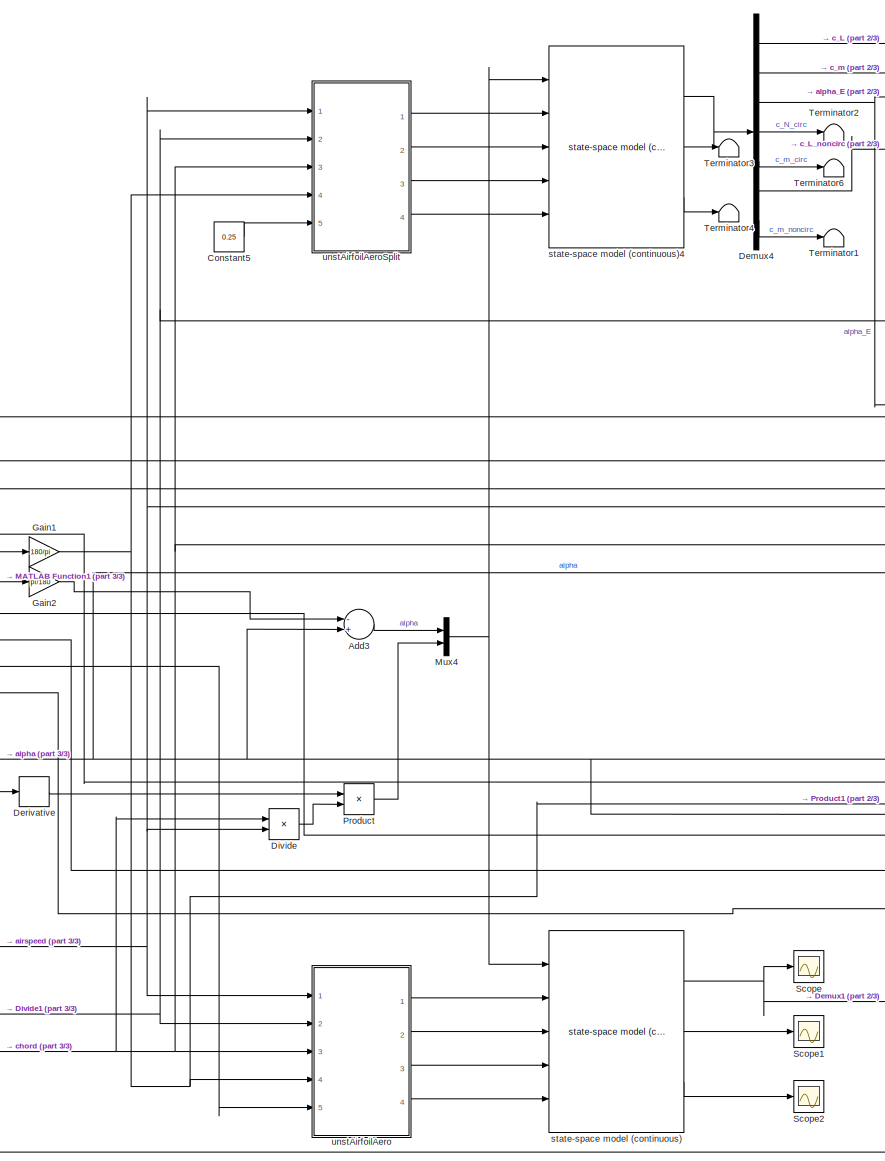
[diagram: root canvas - part 1/3, center side, full height]
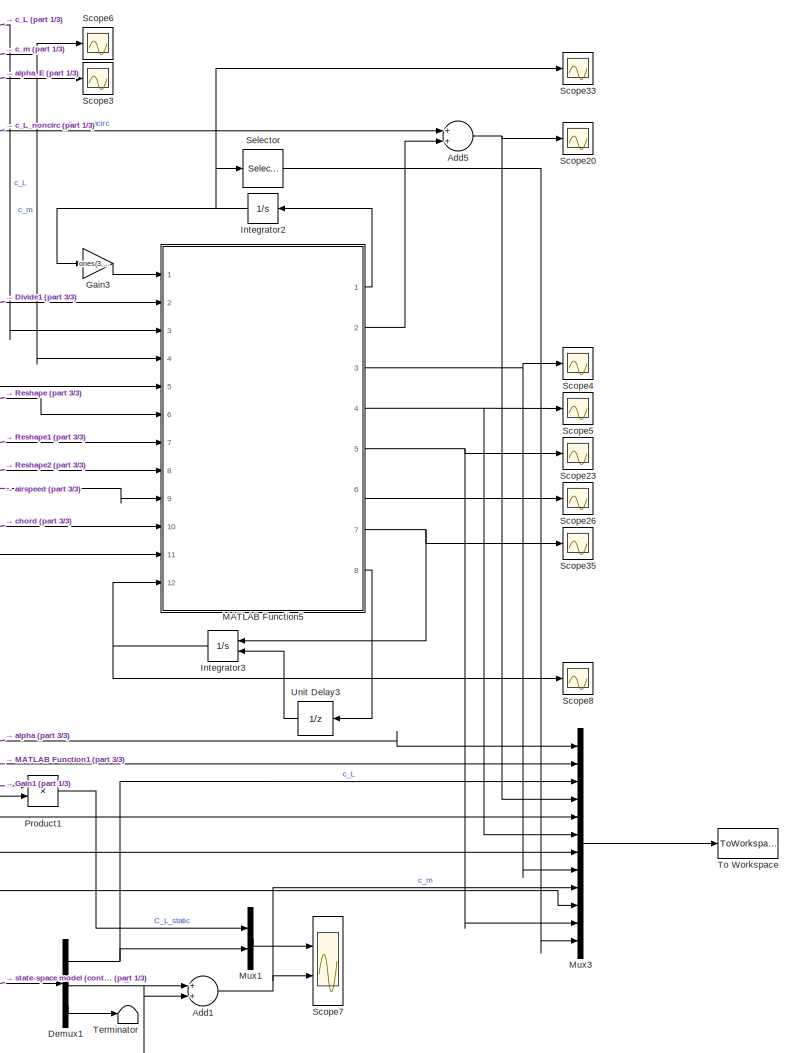
[diagram: root canvas - part 2/3, right side, full height]
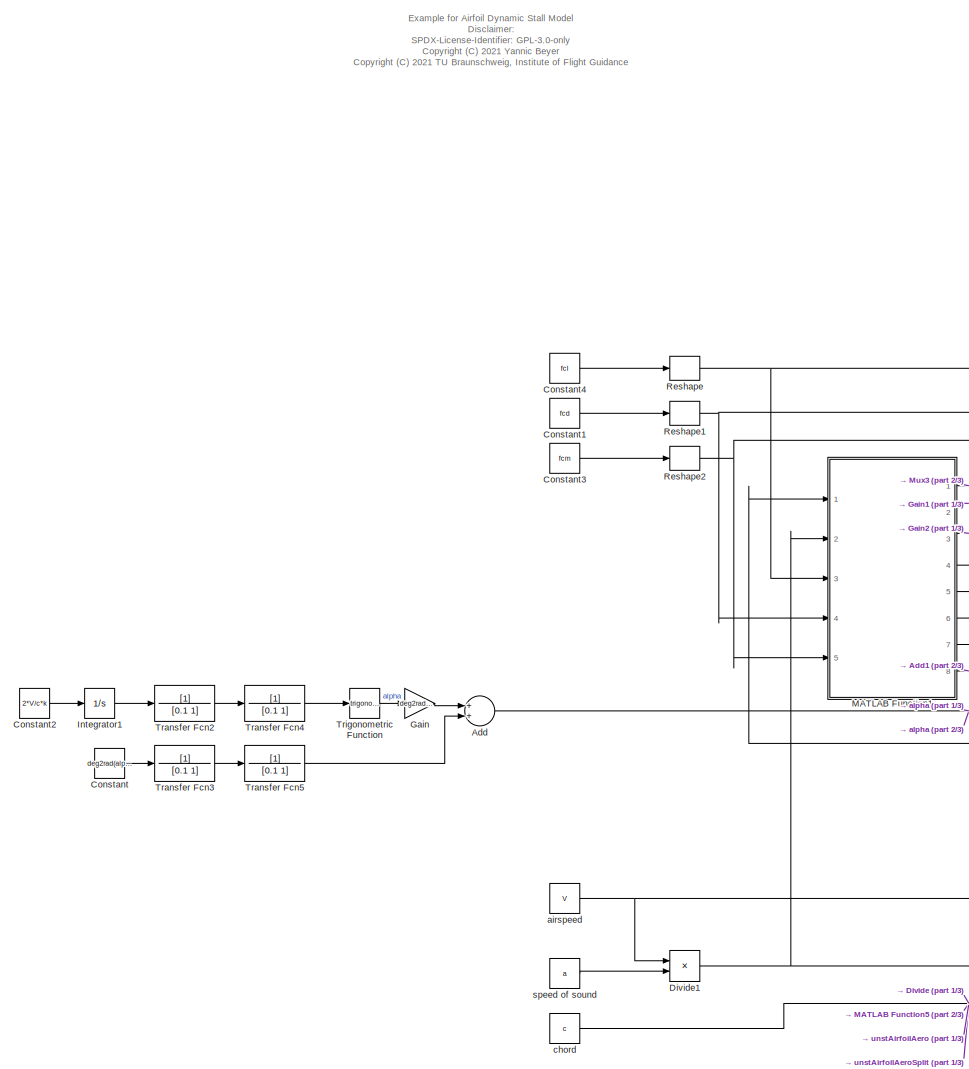
[diagram: root canvas - part 3/3, left side, full height]
MODEL slx_f04c9dd9e634
KIND model
CONFIG AbsTol = auto
CONFIG EnableMultiTasking = off
CONFIG FixedStep = 0.002
CONFIG MaxStep = auto
CONFIG MinStep = auto
CONFIG RelTol = 1e-3
CONFIG SampleTimeConstraint = Unconstrained
CONFIG Solver = FixedStepAuto
CONFIG SolverName = FixedStepAuto
CONFIG StartTime = 0.0
CONFIG StopTime = t_sim
BLOCK [Sum] Add
  InputSameDT = off
  OutDataTypeStr = Inherit: Inherit via internal rule
  Ports = [2, 1]
  SaturateOnIntegerOverflow = off
BLOCK [Sum] Add1
  InputSameDT = off
  OutDataTypeStr = Inherit: Inherit via internal rule
  Ports = [2, 1]
  SaturateOnIntegerOverflow = off
BLOCK [Sum] Add3
  InputSameDT = off
  Inputs = -+
  OutDataTypeStr = Inherit: Inherit via internal rule
  Ports = [2, 1]
  SaturateOnIntegerOverflow = off
BLOCK [Sum] Add5
  InputSameDT = off
  OutDataTypeStr = Inherit: Inherit via internal rule
  Ports = [2, 1]
  SaturateOnIntegerOverflow = off
BLOCK [Constant] Constant
  Value = deg2rad(alpha_0)
BLOCK [Constant] Constant1
  Value = fcd
BLOCK [Constant] Constant2
  Value = 2*V/c*k
BLOCK [Constant] Constant3
  Value = fcm
BLOCK [Constant] Constant4
  Value = fcl
BLOCK [Constant] Constant5
  Value = 0.25
BLOCK [Demux] Demux1
  DisplayOption = bar
  Outputs = 3
  Ports = [1, 3]
BLOCK [Demux] Demux4
  DisplayOption = bar
  Outputs = 7
  Ports = [1, 7]
BLOCK [Derivative] Derivative
BLOCK [Product] Divide
  InputSameDT = off
  Inputs = */
  OutDataTypeStr = Inherit: Inherit via internal rule
  Ports = [2, 1]
  RndMeth = Floor
  SaturateOnIntegerOverflow = off
BLOCK [Product] Divide1
  InputSameDT = off
  Inputs = */
  OutDataTypeStr = Inherit: Inherit via internal rule
  Ports = [2, 1]
  RndMeth = Floor
  SaturateOnIntegerOverflow = off
BLOCK [Gain] Gain
  Gain = deg2rad(Delta_alpha)
  OutDataTypeStr = Inherit: Inherit via internal rule
  ParamDataTypeStr = Inherit: Inherit via internal rule
  SaturateOnIntegerOverflow = off
BLOCK [Gain] Gain1
  Gain = 180/pi
  OutDataTypeStr = Inherit: Inherit via internal rule
  ParamDataTypeStr = Inherit: Inherit via internal rule
  SaturateOnIntegerOverflow = off
BLOCK [Gain] Gain2
  Gain = pi/180
  OutDataTypeStr = Inherit: Inherit via internal rule
  ParamDataTypeStr = Inherit: Inherit via internal rule
  SaturateOnIntegerOverflow = off
BLOCK [Gain] Gain3
  Gain = ones(3,1)
  OutDataTypeStr = Inherit: Inherit via internal rule
  ParamDataTypeStr = Inherit: Inherit via internal rule
  SaturateOnIntegerOverflow = off
BLOCK [Integrator] Integrator1
  Ports = [1, 1]
BLOCK [Integrator] Integrator2
  Ports = [1, 1]
BLOCK [Integrator] Integrator3
  ExternalReset = falling
  Ports = [2, 1]
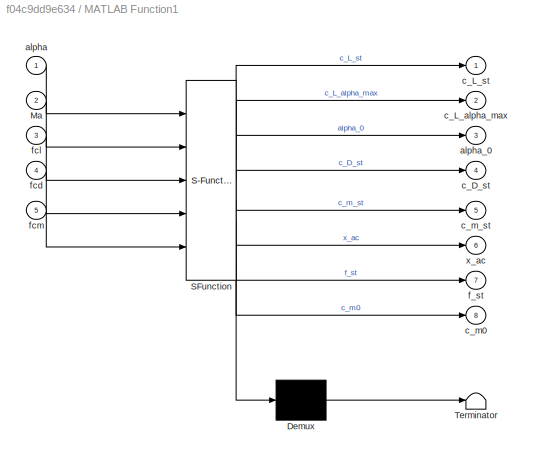
BLOCK [SubSystem] MATLAB Function1
  ErrorFcn = Stateflow.Translate.translate
  PermitHierarchicalResolution = ExplicitOnly
  Ports = [5, 8]
  RequestExecContextInheritance = off
  SFBlockType = MATLAB Function
  TreatAsAtomicUnit = on
BLOCK [Demux] MATLAB Function1/ Demux 
  Outputs = 1
  Ports = [1, 1]
BLOCK [S-Function] MATLAB Function1/ SFunction 
  EnableBusSupport = on
  FunctionName = sf_sfun
  PortCounts = [5 9]
  Ports = [5, 9]
  SFcnIsStateOwnerBlock = off
  SFunctionDeploymentMode = off
  Tag = Stateflow S-Function example_sim_airfoilDynStall 4
BLOCK [Terminator] MATLAB Function1/ Terminator 
BLOCK [Inport] MATLAB Function1/Ma
  IconDisplay = Port number
  Port = 2
BLOCK [Inport] MATLAB Function1/alpha
  IconDisplay = Port number
BLOCK [Outport] MATLAB Function1/alpha_0
  IconDisplay = Port number
  Port = 3
BLOCK [Outport] MATLAB Function1/c_D_st
  IconDisplay = Port number
  Port = 4
BLOCK [Outport] MATLAB Function1/c_L_alpha_max
  IconDisplay = Port number
  Port = 2
BLOCK [Outport] MATLAB Function1/c_L_st
  IconDisplay = Port number
BLOCK [Outport] MATLAB Function1/c_m0
  IconDisplay = Port number
  Port = 8
BLOCK [Outport] MATLAB Function1/c_m_st
  IconDisplay = Port number
  Port = 5
BLOCK [Outport] MATLAB Function1/f_st
  IconDisplay = Port number
  Port = 7
BLOCK [Inport] MATLAB Function1/fcd
  IconDisplay = Port number
  Port = 4
BLOCK [Inport] MATLAB Function1/fcl
  IconDisplay = Port number
  Port = 3
BLOCK [Inport] MATLAB Function1/fcm
  IconDisplay = Port number
  Port = 5
BLOCK [Outport] MATLAB Function1/x_ac
  IconDisplay = Port number
  Port = 6
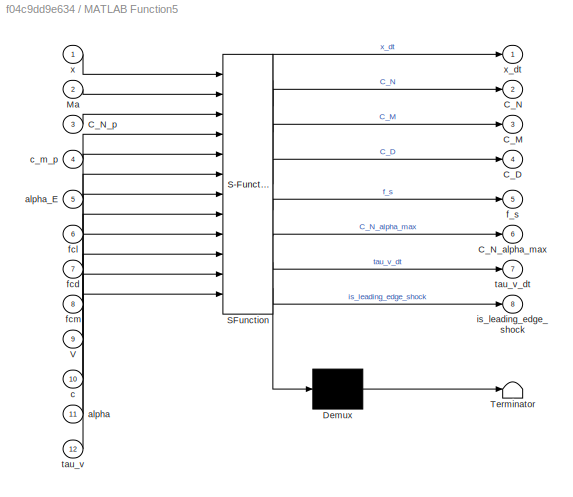
BLOCK [SubSystem] MATLAB Function5
  ErrorFcn = Stateflow.Translate.translate
  PermitHierarchicalResolution = ExplicitOnly
  Ports = [12, 8]
  RequestExecContextInheritance = off
  SFBlockType = MATLAB Function
  TreatAsAtomicUnit = on
BLOCK [Demux] MATLAB Function5/ Demux 
  Outputs = 1
  Ports = [1, 1]
BLOCK [S-Function] MATLAB Function5/ SFunction 
  EnableBusSupport = on
  FunctionName = sf_sfun
  PortCounts = [12 9]
  Ports = [12, 9]
  SFcnIsStateOwnerBlock = off
  SFunctionDeploymentMode = off
  Tag = Stateflow S-Function example_sim_airfoilDynStall 10
BLOCK [Terminator] MATLAB Function5/ Terminator 
BLOCK [Outport] MATLAB Function5/C_D
  IconDisplay = Port number
  Port = 4
BLOCK [Outport] MATLAB Function5/C_M
  IconDisplay = Port number
  Port = 3
BLOCK [Outport] MATLAB Function5/C_N
  IconDisplay = Port number
  Port = 2
BLOCK [Outport] MATLAB Function5/C_N_alpha_max
  IconDisplay = Port number
  Port = 6
BLOCK [Inport] MATLAB Function5/C_N_p
  IconDisplay = Port number
  Port = 3
BLOCK [Inport] MATLAB Function5/Ma
  IconDisplay = Port number
  Port = 2
BLOCK [Inport] MATLAB Function5/V
  IconDisplay = Port number
  Port = 9
BLOCK [Inport] MATLAB Function5/alpha
  IconDisplay = Port number
  Port = 11
BLOCK [Inport] MATLAB Function5/alpha_E
  IconDisplay = Port number
  Port = 5
BLOCK [Inport] MATLAB Function5/c
  IconDisplay = Port number
  Port = 10
BLOCK [Inport] MATLAB Function5/c_m_p
  IconDisplay = Port number
  Port = 4
BLOCK [Outport] MATLAB Function5/f_s
  IconDisplay = Port number
  Port = 5
BLOCK [Inport] MATLAB Function5/fcd
  IconDisplay = Port number
  Port = 7
BLOCK [Inport] MATLAB Function5/fcl
  IconDisplay = Port number
  Port = 6
BLOCK [Inport] MATLAB Function5/fcm
  IconDisplay = Port number
  Port = 8
BLOCK [Outport] MATLAB Function5/is_leading_edge_shock
  IconDisplay = Port number
  Port = 8
BLOCK [Inport] MATLAB Function5/tau_v
  IconDisplay = Port number
  Port = 12
BLOCK [Outport] MATLAB Function5/tau_v_dt
  IconDisplay = Port number
  Port = 7
BLOCK [Inport] MATLAB Function5/x
  IconDisplay = Port number
BLOCK [Outport] MATLAB Function5/x_dt
  IconDisplay = Port number
BLOCK [Mux] Mux1
  DisplayOption = bar
  Inputs = 2
  Ports = [2, 1]
BLOCK [Mux] Mux3
  DisplayOption = bar
  Inputs = 12
  Ports = [12, 1]
BLOCK [Mux] Mux4
  DisplayOption = bar
  Inputs = 2
  Ports = [2, 1]
BLOCK [Product] Product
  InputSameDT = off
  OutDataTypeStr = Inherit: Inherit via internal rule
  Ports = [2, 1]
  RndMeth = Floor
  SaturateOnIntegerOverflow = off
BLOCK [Product] Product1
  InputSameDT = off
  OutDataTypeStr = Inherit: Inherit via internal rule
  Ports = [2, 1]
  RndMeth = Floor
  SaturateOnIntegerOverflow = off
BLOCK [Reshape] Reshape
  OutputDimensionality = Row vector (2-D)
  Ports = [1, 1]
BLOCK [Reshape] Reshape1
  OutputDimensionality = Row vector (2-D)
  Ports = [1, 1]
BLOCK [Reshape] Reshape2
  OutputDimensionality = Row vector (2-D)
  Ports = [1, 1]
BLOCK [Scope] Scope
  Floating = off
  NumInputPorts = 1
  Ports = [1]
  ScopeSpecificationString = Simulink.scopes.TimeScopeBlockCfg('CurrentConfiguration', extmgr.ConfigurationSet(extmgr.Configuration('Core','General UI',true),extmgr.Configuration('Core','Source UI',true),extmgr.Configuration('Sources','WiredSimulink',true),extmgr.Configuration('Visuals','Time Domain',true,'SerializedDisplays',{struct('MinYLimReal','-0.10163','MaxYLimReal','0.81742','YLabelReal','','MinYLimMag','0.00000','MaxY...<+1536ch>
BLOCK [Scope] Scope1
  Floating = off
  NumInputPorts = 1
  Ports = [1]
  ScopeSpecificationString = Simulink.scopes.TimeScopeBlockCfg('CurrentConfiguration', extmgr.ConfigurationSet(extmgr.Configuration('Core','General UI',true),extmgr.Configuration('Core','Source UI',true),extmgr.Configuration('Sources','WiredSimulink',true,'DataLoggingVariableName','ScopeData1'),extmgr.Configuration('Visuals','Time Domain',true,'SerializedDisplays',{struct('MinYLimReal','-0.0125','MaxYLimReal','0.1125','YLabel...<+1703ch>
BLOCK [Scope] Scope2
  Floating = off
  NumInputPorts = 1
  Ports = [1]
  ScopeSpecificationString = Simulink.scopes.TimeScopeBlockCfg('CurrentConfiguration', extmgr.ConfigurationSet(extmgr.Configuration('Core','General UI',true),extmgr.Configuration('Core','Source UI',true),extmgr.Configuration('Sources','WiredSimulink',true,'DataLoggingVariableName','ScopeData2'),extmgr.Configuration('Visuals','Time Domain',true,'SerializedDisplays',{struct('MinYLimReal','-0.00548','MaxYLimReal','0.04926','YLab...<+1704ch>
BLOCK [Scope] Scope20
  Floating = off
  NumInputPorts = 1
  Ports = [1]
  ScopeSpecificationString = Simulink.scopes.TimeScopeBlockCfg('CurrentConfiguration', extmgr.ConfigurationSet(extmgr.Configuration('Core','General UI',true),extmgr.Configuration('Core','Source UI',true),extmgr.Configuration('Sources','WiredSimulink',true,'DataLoggingVariableName','ScopeData6'),extmgr.Configuration('Visuals','Time Domain',true,'SerializedDisplays',{struct('MinYLimReal','0.01884','MaxYLimReal','1.626','YLabelR...<+1378ch>
BLOCK [Scope] Scope23
  Floating = off
  NumInputPorts = 1
  Ports = [1]
  ScopeSpecificationString = Simulink.scopes.TimeScopeBlockCfg('CurrentConfiguration', extmgr.ConfigurationSet(extmgr.Configuration('Core','General UI',true),extmgr.Configuration('Core','Source UI',true),extmgr.Configuration('Sources','WiredSimulink',true,'DataLoggingVariableName','ScopeData9'),extmgr.Configuration('Visuals','Time Domain',true,'SerializedDisplays',{struct('MinYLimReal','-0.07224','MaxYLimReal','1.11914','YLab...<+1423ch>
BLOCK [Scope] Scope26
  Floating = off
  NumInputPorts = 1
  Ports = [1]
  ScopeSpecificationString = Simulink.scopes.TimeScopeBlockCfg('CurrentConfiguration', extmgr.ConfigurationSet(extmgr.Configuration('Core','General UI',true),extmgr.Configuration('Core','Source UI',true),extmgr.Configuration('Sources','WiredSimulink',true,'DataLoggingVariableName','ScopeData12'),extmgr.Configuration('Visuals','Time Domain',true,'SerializedDisplays',{struct('MinYLimReal','6.22073','MaxYLimReal','8.22073','YLab...<+1413ch>
BLOCK [Scope] Scope3
  Floating = off
  NumInputPorts = 1
  Ports = [1]
  ScopeSpecificationString = Simulink.scopes.TimeScopeBlockCfg('CurrentConfiguration', extmgr.ConfigurationSet(extmgr.Configuration('Core','General UI',true),extmgr.Configuration('Core','Source UI',true),extmgr.Configuration('Sources','WiredSimulink',true,'DataLoggingVariableName','ScopeData1'),extmgr.Configuration('Visuals','Time Domain',true,'SerializedDisplays',{struct('MinYLimReal','-0.02184','MaxYLimReal','0.19659','YLab...<+1366ch>
BLOCK [Scope] Scope33
  Floating = off
  NumInputPorts = 1
  Ports = [1]
  ScopeSpecificationString = Simulink.scopes.TimeScopeBlockCfg('CurrentConfiguration', extmgr.ConfigurationSet(extmgr.Configuration('Core','General UI',true),extmgr.Configuration('Core','Source UI',true),extmgr.Configuration('Sources','WiredSimulink',true,'DataLoggingVariableName','ScopeData3'),extmgr.Configuration('Visuals','Time Domain',true,'SerializedDisplays',{struct('MinYLimReal','-0.08993','MaxYLimReal','0.21213','YLab...<+1489ch>
BLOCK [Scope] Scope35
  Floating = off
  NumInputPorts = 1
  Ports = [1]
  ScopeSpecificationString = Simulink.scopes.TimeScopeBlockCfg('CurrentConfiguration', extmgr.ConfigurationSet(extmgr.Configuration('Core','General UI',true),extmgr.Configuration('Core','Source UI',true),extmgr.Configuration('Sources','WiredSimulink',true,'DataLoggingVariableName','ScopeData1'),extmgr.Configuration('Visuals','Time Domain',true,'SerializedDisplays',{struct('MinYLimReal','-0.125','MaxYLimReal','1.125','YLabelRe...<+1397ch>
BLOCK [Scope] Scope4
  Floating = off
  NumInputPorts = 1
  Ports = [1]
  ScopeSpecificationString = Simulink.scopes.TimeScopeBlockCfg('CurrentConfiguration', extmgr.ConfigurationSet(extmgr.Configuration('Core','General UI',true),extmgr.Configuration('Core','Source UI',true),extmgr.Configuration('Sources','WiredSimulink',true,'DataLoggingVariableName','ScopeData2'),extmgr.Configuration('Visuals','Time Domain',true,'SerializedDisplays',{struct('MinYLimReal','-1.00000','MaxYLimReal','1.00000','YLab...<+1423ch>
BLOCK [Scope] Scope5
  Floating = off
  NumInputPorts = 1
  Ports = [1]
  ScopeSpecificationString = Simulink.scopes.TimeScopeBlockCfg('CurrentConfiguration', extmgr.ConfigurationSet(extmgr.Configuration('Core','General UI',true),extmgr.Configuration('Core','Source UI',true),extmgr.Configuration('Sources','WiredSimulink',true,'DataLoggingVariableName','ScopeData3'),extmgr.Configuration('Visuals','Time Domain',true,'SerializedDisplays',{struct('MinYLimReal','-1.00000','MaxYLimReal','1.00000','YLab...<+1423ch>
BLOCK [Scope] Scope6
  Floating = off
  NumInputPorts = 1
  Ports = [1]
  ScopeSpecificationString = Simulink.scopes.TimeScopeBlockCfg('CurrentConfiguration', extmgr.ConfigurationSet(extmgr.Configuration('Core','General UI',true),extmgr.Configuration('Core','Source UI',true),extmgr.Configuration('Sources','WiredSimulink',true,'DataLoggingVariableName','ScopeData1'),extmgr.Configuration('Visuals','Time Domain',true,'SerializedDisplays',{struct('MinYLimReal','-0.08869','MaxYLimReal','-0.0034','YLab...<+1406ch>
BLOCK [Scope] Scope7
  Floating = off
  NumInputPorts = 2
  Ports = [2]
  ScopeSpecificationString = Simulink.scopes.TimeScopeBlockCfg('CurrentConfiguration', extmgr.ConfigurationSet(extmgr.Configuration('Core','General UI',true),extmgr.Configuration('Core','Source UI',true),extmgr.Configuration('Sources','WiredSimulink',true,'DataLoggingVariableName','ScopeData5'),extmgr.Configuration('Visuals','Time Domain',true,'SerializedDisplays',{struct('MinYLimReal','-0.93594','MaxYLimReal','4.58755','YLab...<+2303ch>
BLOCK [Scope] Scope8
  Floating = off
  NumInputPorts = 1
  Ports = [1]
  ScopeSpecificationString = Simulink.scopes.TimeScopeBlockCfg('CurrentConfiguration', extmgr.ConfigurationSet(extmgr.Configuration('Core','General UI',true),extmgr.Configuration('Core','Source UI',true),extmgr.Configuration('Sources','WiredSimulink',true,'DataLoggingVariableName','ScopeData2'),extmgr.Configuration('Visuals','Time Domain',true,'SerializedDisplays',{struct('MinYLimReal','-0.03683','MaxYLimReal','0.3315','YLabe...<+1391ch>
BLOCK [Selector] Selector
  IndexOptions = Index vector (dialog)
  Indices = 2
  InputPortWidth = 3
  OutputSizes = 1
  Ports = [1, 1]
BLOCK [Terminator] Terminator
BLOCK [Terminator] Terminator1
BLOCK [Terminator] Terminator2
BLOCK [Terminator] Terminator3
BLOCK [Terminator] Terminator4
BLOCK [Terminator] Terminator6
BLOCK [ToWorkspace] To Workspace
  FixptAsFi = on
  MaxDataPoints = inf
  Ports = [1]
  SampleTime = -1
  Save2DSignal = 3-D array (concatenate along third dimension)
  SaveFormat = Timeseries
  VariableName = simout
BLOCK [TransferFcn] Transfer Fcn2
  Denominator = [0.1 1]
BLOCK [TransferFcn] Transfer Fcn3
  Denominator = [0.1 1]
BLOCK [TransferFcn] Transfer Fcn4
  Denominator = [0.1 1]
BLOCK [TransferFcn] Transfer Fcn5
  Denominator = [0.1 1]
BLOCK [Trigonometry] Trigonometric Function
  Ports = [1, 1]
BLOCK [UnitDelay] Unit Delay3
  InputProcessing = Elements as channels (sample based)
  SampleTime = -1
BLOCK [Constant] airspeed
  Value = V
BLOCK [Constant] chord
  Value = c
BLOCK [Constant] speed of sound
  Value = a
BLOCK [Reference] state-space model (continuous)  REF=linear_systems_lib/state-space model   (lib defined in slx_6d7ae23f43cd)
(continuous)
  Ports = [5, 3]
  SourceBlock = linear_systems_lib/state-space model \n(continuous)
  SourceProductName = LADAC
BLOCK [Reference] state-space model (continuous)4  REF=linear_systems_lib/state-space model   (lib defined in slx_6d7ae23f43cd)
(continuous)
  Ports = [5, 3]
  SourceBlock = linear_systems_lib/state-space model \n(continuous)
  SourceProductName = LADAC
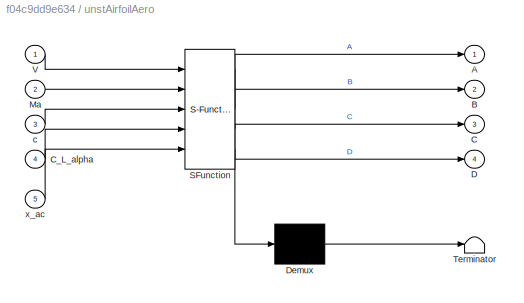
BLOCK [SubSystem] unstAirfoilAero
  ErrorFcn = Stateflow.Translate.translate
  PermitHierarchicalResolution = ExplicitOnly
  Ports = [5, 4]
  RequestExecContextInheritance = off
  SFBlockType = MATLAB Function
  TreatAsAtomicUnit = on
BLOCK [Demux] unstAirfoilAero/ Demux 
  Outputs = 1
  Ports = [1, 1]
BLOCK [S-Function] unstAirfoilAero/ SFunction 
  EnableBusSupport = on
  FunctionName = sf_sfun
  PortCounts = [5 5]
  Ports = [5, 5]
  SFcnIsStateOwnerBlock = off
  SFunctionDeploymentMode = off
  Tag = Stateflow S-Function example_sim_airfoilDynStall 2
BLOCK [Terminator] unstAirfoilAero/ Terminator 
BLOCK [Outport] unstAirfoilAero/A
  IconDisplay = Port number
BLOCK [Outport] unstAirfoilAero/B
  IconDisplay = Port number
  Port = 2
BLOCK [Outport] unstAirfoilAero/C
  IconDisplay = Port number
  Port = 3
BLOCK [Inport] unstAirfoilAero/C_L_alpha
  IconDisplay = Port number
  Port = 4
BLOCK [Outport] unstAirfoilAero/D
  IconDisplay = Port number
  Port = 4
BLOCK [Inport] unstAirfoilAero/Ma
  IconDisplay = Port number
  Port = 2
BLOCK [Inport] unstAirfoilAero/V
  IconDisplay = Port number
BLOCK [Inport] unstAirfoilAero/c
  IconDisplay = Port number
  Port = 3
BLOCK [Inport] unstAirfoilAero/x_ac
  IconDisplay = Port number
  Port = 5
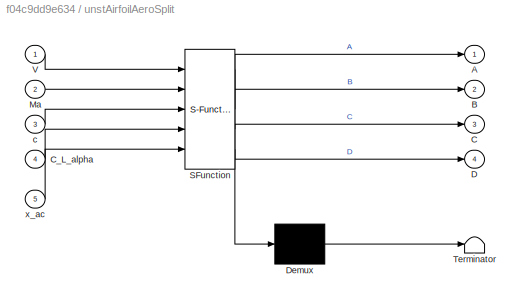
BLOCK [SubSystem] unstAirfoilAeroSplit
  ErrorFcn = Stateflow.Translate.translate
  PermitHierarchicalResolution = ExplicitOnly
  Ports = [5, 4]
  RequestExecContextInheritance = off
  SFBlockType = MATLAB Function
  TreatAsAtomicUnit = on
BLOCK [Demux] unstAirfoilAeroSplit/ Demux 
  Outputs = 1
  Ports = [1, 1]
BLOCK [S-Function] unstAirfoilAeroSplit/ SFunction 
  EnableBusSupport = on
  FunctionName = sf_sfun
  PortCounts = [5 5]
  Ports = [5, 5]
  SFcnIsStateOwnerBlock = off
  SFunctionDeploymentMode = off
  Tag = Stateflow S-Function example_sim_airfoilDynStall 12
BLOCK [Terminator] unstAirfoilAeroSplit/ Terminator 
BLOCK [Outport] unstAirfoilAeroSplit/A
  IconDisplay = Port number
BLOCK [Outport] unstAirfoilAeroSplit/B
  IconDisplay = Port number
  Port = 2
BLOCK [Outport] unstAirfoilAeroSplit/C
  IconDisplay = Port number
  Port = 3
BLOCK [Inport] unstAirfoilAeroSplit/C_L_alpha
  IconDisplay = Port number
  Port = 4
BLOCK [Outport] unstAirfoilAeroSplit/D
  IconDisplay = Port number
  Port = 4
BLOCK [Inport] unstAirfoilAeroSplit/Ma
  IconDisplay = Port number
  Port = 2
BLOCK [Inport] unstAirfoilAeroSplit/V
  IconDisplay = Port number
BLOCK [Inport] unstAirfoilAeroSplit/c
  IconDisplay = Port number
  Port = 3
BLOCK [Inport] unstAirfoilAeroSplit/x_ac
  IconDisplay = Port number
  Port = 5
ANNOTATION (root): Example for Airfoil Dynamic Stall Model Disclaimer: SPDX-License-Identifier: GPL-3.0-only <copyright redacted>
NET Add1:1 -> Mux3:9, Scope7:2
LINE Add3:1 -> Mux4:1
NET Add5:1 -> Mux3:4, Scope20:1
NET Add:1 -> Add3:2, Derivative:1, MATLAB Function1:1, MATLAB Function5:11, Mux3:1, Product1:2
LINE Constant1:1 -> Reshape1:1
LINE Constant2:1 -> Integrator1:1
LINE Constant3:1 -> Reshape2:1
LINE Constant4:1 -> Reshape:1
LINE Constant5:1 -> unstAirfoilAeroSplit:5
LINE Constant:1 -> Transfer Fcn3:1
NET Demux1:1 -> Mux1:2, Mux3:3
LINE Demux1:2 -> Add1:1
LINE Demux1:3 -> Terminator:1
LINE Demux4:1 -> MATLAB Function5:3
NET Demux4:2 -> MATLAB Function5:4, Scope6:1
NET Demux4:3 -> MATLAB Function5:5, Scope3:1
LINE Demux4:4 -> Terminator2:1
LINE Demux4:5 -> Terminator6:1
LINE Demux4:6 -> Add5:1
LINE Demux4:7 -> Terminator1:1
LINE Derivative:1 -> Product:1
NET Divide1:1 -> MATLAB Function1:2, MATLAB Function5:2, unstAirfoilAero:2, unstAirfoilAeroSplit:2
LINE Divide:1 -> Product:2
NET Gain1:1 -> Product1:1, unstAirfoilAero:4, unstAirfoilAeroSplit:4
LINE Gain2:1 -> Add3:1
LINE Gain3:1 -> MATLAB Function5:1
LINE Gain:1 -> Add:1
LINE Integrator1:1 -> Transfer Fcn2:1
NET Integrator2:1 -> Gain3:1, Scope33:1, Selector:1
NET Integrator3:1 -> MATLAB Function5:12, Scope8:1
LINE MATLAB Function1:1 -> Mux3:2
LINE MATLAB Function1:2 -> Gain1:1
LINE MATLAB Function1:3 -> Gain2:1
LINE MATLAB Function1:4 -> Mux3:5
LINE MATLAB Function1:5 -> Mux3:7
LINE MATLAB Function1:6 -> unstAirfoilAero:5
LINE MATLAB Function1:7 -> Mux3:10
LINE MATLAB Function1:8 -> Add1:2
LINE MATLAB Function5:1 -> Integrator2:1
LINE MATLAB Function5:2 -> Add5:2
NET MATLAB Function5:3 -> Mux3:8, Scope4:1
NET MATLAB Function5:4 -> Mux3:6, Scope5:1
NET MATLAB Function5:5 -> Mux3:11, Scope23:1
LINE MATLAB Function5:6 -> Scope26:1
NET MATLAB Function5:7 -> Integrator3:1, Scope35:1
LINE MATLAB Function5:8 -> Unit Delay3:1
LINE Mux1:1 -> Scope7:1
LINE Mux3:1 -> To Workspace:1
NET Mux4:1 -> state-space model (continuous)4:1, state-space model (continuous):1
LINE Product1:1 -> Mux1:1
LINE Product:1 -> Mux4:2
NET Reshape1:1 -> MATLAB Function1:4, MATLAB Function5:7
NET Reshape2:1 -> MATLAB Function1:5, MATLAB Function5:8
NET Reshape:1 -> MATLAB Function1:3, MATLAB Function5:6
LINE Selector:1 -> Mux3:12
LINE Transfer Fcn2:1 -> Transfer Fcn4:1
LINE Transfer Fcn3:1 -> Transfer Fcn5:1
LINE Transfer Fcn4:1 -> Trigonometric Function:1
LINE Transfer Fcn5:1 -> Add:2
LINE Trigonometric Function:1 -> Gain:1
LINE Unit Delay3:1 -> Integrator3:2
NET airspeed:1 -> Divide1:1, Divide:2, MATLAB Function5:9, unstAirfoilAero:1, unstAirfoilAeroSplit:1
NET chord:1 -> Divide:1, MATLAB Function5:10, unstAirfoilAero:3, unstAirfoilAeroSplit:3
LINE speed of sound:1 -> Divide1:2
LINE state-space model (continuous)4:1 -> Demux4:1
LINE state-space model (continuous)4:2 -> Terminator3:1
LINE state-space model (continuous)4:3 -> Terminator4:1
NET state-space model (continuous):1 -> Demux1:1, Scope:1
LINE state-space model (continuous):2 -> Scope1:1
LINE state-space model (continuous):3 -> Scope2:1
LINE unstAirfoilAero:1 -> state-space model (continuous):2
LINE unstAirfoilAero:2 -> state-space model (continuous):3
LINE unstAirfoilAero:3 -> state-space model (continuous):4
LINE unstAirfoilAero:4 -> state-space model (continuous):5
LINE unstAirfoilAeroSplit:1 -> state-space model (continuous)4:2
LINE unstAirfoilAeroSplit:2 -> state-space model (continuous)4:3
LINE unstAirfoilAeroSplit:3 -> state-space model (continuous)4:4
LINE unstAirfoilAeroSplit:4 -> state-space model (continuous)4:5
note: NET lines group one-source signal fan-out (src -> all destinations, sorted); 1:1 wires keep LINE
CHART unstAirfoilAero states=1 transitions=1
  STATE_LABEL 'eML_blk_kernel()'
  STATE_LABEL 'SCRIPT:\nfunction [A,B,C,D] = fcn( V, Ma, c, C_L_alpha, x_ac ) %#codegen\n[A,B,C,D] = unstAirfoilAero( V, Ma, c, C_L_alpha, x_ac );\nend'
CHART MATLAB Function1 states=1 transitions=1
  STATE_LABEL 'eML_blk_kernel()'
  STATE_LABEL 'SCRIPT:\nfunction [c_L_st,c_L_alpha_max,alpha_0,c_D_st,c_m_st,x_ac,f_st,c_m0] = fcn(alpha,Ma, fcl,fcd, fcm)\nalpha_deg = rad2deg(alpha);\n\nc_L_st = airfoilAnalytic0515AlCl( fcl, grid2Coordinates( alpha_deg, Ma ) );\n[C_N_alpha_max,alpha_0] = airfoilAnalytic0515ClAlphaMax( fcl, Ma );\nc_L_alpha_max = C_N_alpha_max;\n\nc_D_st = airfoilAnalytic0515AlCd( fcd, rad2deg(alpha) );\n\nf_st = airfoilDynStallFst( c_L...<+171ch>'
CHART MATLAB Function5 states=1 transitions=1
  STATE_LABEL 'eML_blk_kernel()'
  STATE_LABEL 'SCRIPT:\nfunction [ x_dt, C_N, C_M, C_D, f_s, C_N_alpha_max, tau_v_dt, is_leading_edge_shock ] = airfoilDynStall( x, Ma, C_N_p, c_m_p, alpha_E, fcl, fcd, fcm, V, c, alpha, tau_v) %#codegen\n[ x_dt, C_N, C_M, C_D, f_s, C_N_alpha_max, tau_v_dt, is_leading_edge_shock ] = airfoilDynStall( x, Ma, C_N_p, c_m_p, alpha_E, fcl, fcd, fcm, V, c, alpha, tau_v );\nend'
CHART unstAirfoilAeroSplit states=1 transitions=1
  STATE_LABEL 'eML_blk_kernel()'
  STATE_LABEL 'SCRIPT:\nfunction [A,B,C,D] = fcn( V, Ma, c, C_L_alpha, x_ac ) %#codegen\n[A,B,C,D] = unstAirfoilAeroSplit( V, Ma, c, C_L_alpha, x_ac );\nend'
